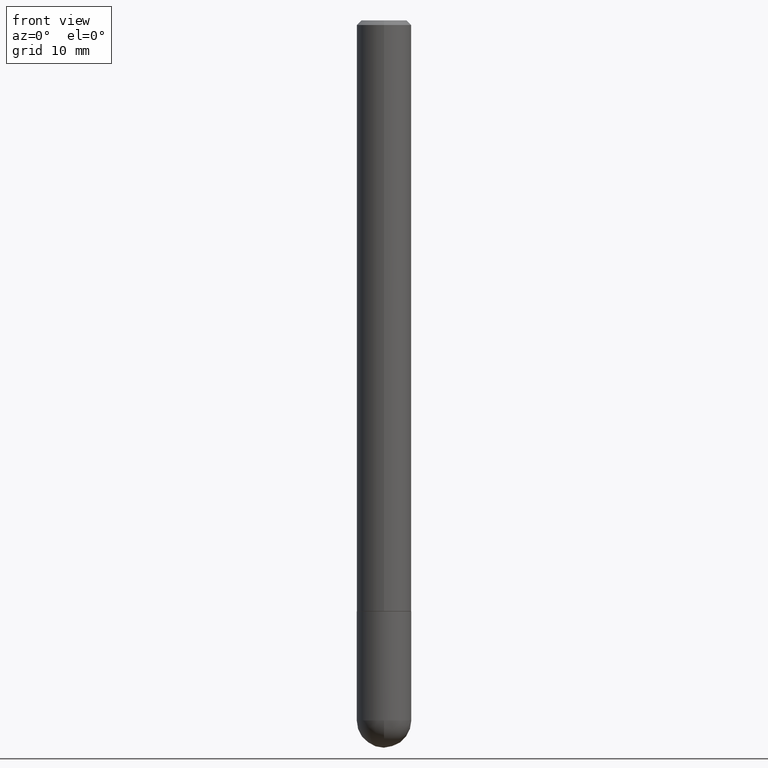
[diagram: clean part render]
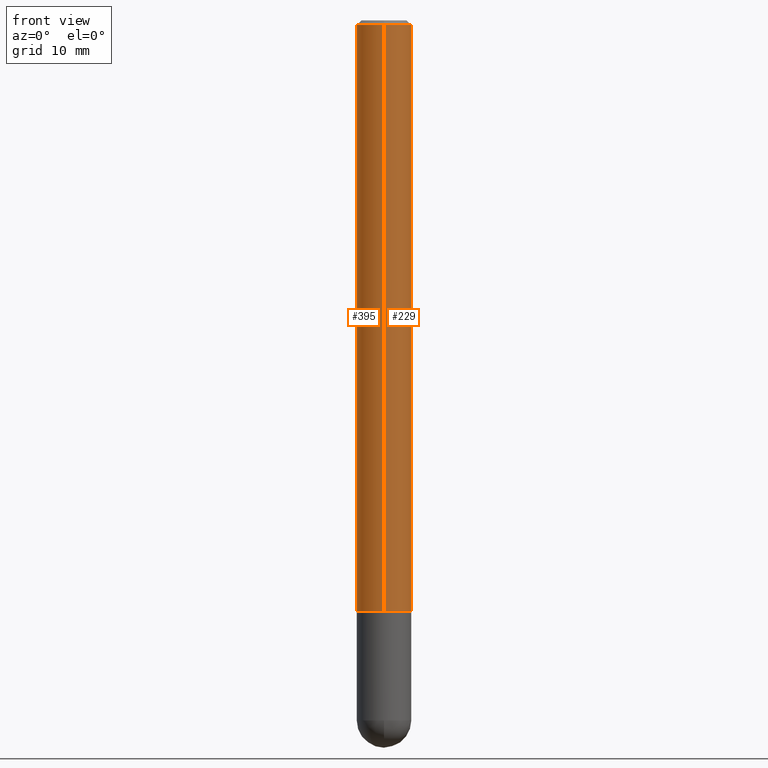
[diagram: same view with one multi-face feature highlighted, each face labeled with its STEP entity id]
A machine part, front view. The highlighted faces form ONE feature: a constant-radius fillet chain: 2 tangent blend faces with common blend radius 2.9997 mm. The faces share edges in the B-rep.
Their STEP definitions:
[1] entity #229 (Cylinder):
#6 = VECTOR ( 'NONE', #367, 39.37007874015748143 ) ;
#8 = VERTEX_POINT ( 'NONE', #249 ) ;
#16 = CIRCLE ( 'NONE', #323, 0.1181000000000002881 ) ;
#20 = CARTESIAN_POINT ( 'NONE',  ( 8.246878922347486570E-16, 0.1180999999999999689, -0.02000000000000048614 ) ) ;
#25 = DIRECTION ( 'NONE',  ( -6.982962677686265922E-15, -1.000000000000000000, 3.469747663417776213E-15 ) ) ;
#35 = ORIENTED_EDGE ( 'NONE', *, *, #37, .F. ) ;
#37 = EDGE_CURVE ( 'NONE', #8, #125, #256, .T. ) ;
#44 = EDGE_LOOP ( 'NONE', ( #74, #69, #104, #35 ) ) ;
#48 = AXIS2_PLACEMENT_3D ( 'NONE', #174, #179, #25 ) ;
#53 = CARTESIAN_POINT ( 'NONE',  ( -8.246878922347491501E-16, -0.1181000000000001632, 4.114153699294472715E-16 ) ) ;
#60 = EDGE_CURVE ( 'NONE', #8, #65, #16, .T. ) ;
#65 = VERTEX_POINT ( 'NONE', #209 ) ;
#69 = ORIENTED_EDGE ( 'NONE', *, *, #157, .T. ) ;
#74 = ORIENTED_EDGE ( 'NONE', *, *, #60, .T. ) ;
#88 = CARTESIAN_POINT ( 'NONE',  ( -8.102248135368175393E-16, -0.1181000000000001077, -0.01999999999999966735 ) ) ;
#104 = ORIENTED_EDGE ( 'NONE', *, *, #145, .F. ) ;
#109 = LINE ( 'NONE', #112, #6 ) ;
#112 = CARTESIAN_POINT ( 'NONE',  ( 8.391509709326793804E-16, 0.1181000000000001632, -4.114153699294472715E-16 ) ) ;
#124 = DIRECTION ( 'NONE',  ( -2.450959248914768678E-29, 3.483618712357719301E-15, 1.000000000000000000 ) ) ;
#125 = VERTEX_POINT ( 'NONE', #88 ) ;
#145 = EDGE_CURVE ( 'NONE', #125, #384, #362, .T. ) ;
#156 = DIRECTION ( 'NONE',  ( -6.982962677686265922E-15, -1.000000000000000000, 3.483618712357719695E-15 ) ) ;
#157 = EDGE_CURVE ( 'NONE', #65, #384, #109, .T. ) ;
#174 = CARTESIAN_POINT ( 'NONE',  ( 4.901918497829555222E-31, -6.967237424715466014E-17, -0.02000000000000007674 ) ) ;
#179 = DIRECTION ( 'NONE',  ( -2.450959248914768678E-29, 3.483618712357719301E-15, 1.000000000000000000 ) ) ;
#209 = CARTESIAN_POINT ( 'NONE',  ( 8.391509709327114278E-16, 0.1180999999999913785, -2.558000000000001162 ) ) ;
#225 = CYLINDRICAL_SURFACE ( 'NONE', #389, 0.1181000000000001632 ) ;
#229 = ADVANCED_FACE ( 'NONE', ( #382 ), #225, .T. ) ;
#235 = VECTOR ( 'NONE', #363, 39.37007874015748143 ) ;
#249 = CARTESIAN_POINT ( 'NONE',  ( -8.246878922346873231E-16, -0.1181000000000091976, -2.557999999999999829 ) ) ;
#252 = DIRECTION ( 'NONE',  ( -6.982962677686265922E-15, -1.000000000000000000, 4.626330217890358292E-15 ) ) ;
#256 = LINE ( 'NONE', #53, #235 ) ;
#302 = DIRECTION ( 'NONE',  ( -2.450959248914768678E-29, 3.483618712357719301E-15, 1.000000000000000000 ) ) ;
#323 = AXIS2_PLACEMENT_3D ( 'NONE', #370, #302, #252 ) ;
#347 = CARTESIAN_POINT ( 'NONE',  ( 0.000000000000000000, 0.000000000000000000, 0.000000000000000000 ) ) ;
#362 = CIRCLE ( 'NONE', #48, 0.1181000000000000383 ) ;
#363 = DIRECTION ( 'NONE',  ( -2.450959248914768678E-29, 3.483618712357719301E-15, 1.000000000000000000 ) ) ;
#367 = DIRECTION ( 'NONE',  ( -2.450959248914768678E-29, 3.483618712357719301E-15, 1.000000000000000000 ) ) ;
#370 = CARTESIAN_POINT ( 'NONE',  ( 6.269553758723979197E-29, -8.911096666211047225E-15, -2.558000000000000274 ) ) ;
#382 = FACE_OUTER_BOUND ( 'NONE', #44, .T. ) ;
#384 = VERTEX_POINT ( 'NONE', #20 ) ;
#389 = AXIS2_PLACEMENT_3D ( 'NONE', #347, #124, #156 ) ;
[2] entity #395 (Cylinder):
#4 = EDGE_CURVE ( 'NONE', #65, #8, #407, .T. ) ;
#6 = VECTOR ( 'NONE', #367, 39.37007874015748143 ) ;
#8 = VERTEX_POINT ( 'NONE', #249 ) ;
#20 = CARTESIAN_POINT ( 'NONE',  ( 8.246878922347486570E-16, 0.1180999999999999689, -0.02000000000000048614 ) ) ;
#30 = AXIS2_PLACEMENT_3D ( 'NONE', #281, #403, #376 ) ;
#34 = AXIS2_PLACEMENT_3D ( 'NONE', #392, #240, #47 ) ;
#37 = EDGE_CURVE ( 'NONE', #8, #125, #256, .T. ) ;
#45 = CARTESIAN_POINT ( 'NONE',  ( 4.901918497829555222E-31, -6.967237424715466014E-17, -0.02000000000000007674 ) ) ;
#47 = DIRECTION ( 'NONE',  ( -6.982962677686265922E-15, -1.000000000000000000, 3.483618712357719695E-15 ) ) ;
#53 = CARTESIAN_POINT ( 'NONE',  ( -8.246878922347491501E-16, -0.1181000000000001632, 4.114153699294472715E-16 ) ) ;
#65 = VERTEX_POINT ( 'NONE', #209 ) ;
#88 = CARTESIAN_POINT ( 'NONE',  ( -8.102248135368175393E-16, -0.1181000000000001077, -0.01999999999999966735 ) ) ;
#101 = DIRECTION ( 'NONE',  ( -2.450959248914768678E-29, 3.483618712357719301E-15, 1.000000000000000000 ) ) ;
#107 = DIRECTION ( 'NONE',  ( -6.982962677686265922E-15, -1.000000000000000000, 3.469747663417776213E-15 ) ) ;
#109 = LINE ( 'NONE', #112, #6 ) ;
#112 = CARTESIAN_POINT ( 'NONE',  ( 8.391509709326793804E-16, 0.1181000000000001632, -4.114153699294472715E-16 ) ) ;
#125 = VERTEX_POINT ( 'NONE', #88 ) ;
#133 = CYLINDRICAL_SURFACE ( 'NONE', #34, 0.1181000000000001632 ) ;
#150 = CIRCLE ( 'NONE', #212, 0.1181000000000000383 ) ;
#157 = EDGE_CURVE ( 'NONE', #65, #384, #109, .T. ) ;
#159 = EDGE_LOOP ( 'NONE', ( #393, #299, #300, #350 ) ) ;
#209 = CARTESIAN_POINT ( 'NONE',  ( 8.391509709327114278E-16, 0.1180999999999913785, -2.558000000000001162 ) ) ;
#212 = AXIS2_PLACEMENT_3D ( 'NONE', #45, #101, #107 ) ;
#235 = VECTOR ( 'NONE', #363, 39.37007874015748143 ) ;
#240 = DIRECTION ( 'NONE',  ( -2.450959248914768678E-29, 3.483618712357719301E-15, 1.000000000000000000 ) ) ;
#249 = CARTESIAN_POINT ( 'NONE',  ( -8.246878922346873231E-16, -0.1181000000000091976, -2.557999999999999829 ) ) ;
#256 = LINE ( 'NONE', #53, #235 ) ;
#281 = CARTESIAN_POINT ( 'NONE',  ( 6.269553758723979197E-29, -8.911096666211047225E-15, -2.558000000000000274 ) ) ;
#299 = ORIENTED_EDGE ( 'NONE', *, *, #4, .T. ) ;
#300 = ORIENTED_EDGE ( 'NONE', *, *, #37, .T. ) ;
#336 = EDGE_CURVE ( 'NONE', #384, #125, #150, .T. ) ;
#350 = ORIENTED_EDGE ( 'NONE', *, *, #336, .F. ) ;
#361 = FACE_OUTER_BOUND ( 'NONE', #159, .T. ) ;
#363 = DIRECTION ( 'NONE',  ( -2.450959248914768678E-29, 3.483618712357719301E-15, 1.000000000000000000 ) ) ;
#367 = DIRECTION ( 'NONE',  ( -2.450959248914768678E-29, 3.483618712357719301E-15, 1.000000000000000000 ) ) ;
#376 = DIRECTION ( 'NONE',  ( -6.982962677686265922E-15, -1.000000000000000000, 4.626330217890358292E-15 ) ) ;
#384 = VERTEX_POINT ( 'NONE', #20 ) ;
#392 = CARTESIAN_POINT ( 'NONE',  ( 0.000000000000000000, 0.000000000000000000, 0.000000000000000000 ) ) ;
#393 = ORIENTED_EDGE ( 'NONE', *, *, #157, .F. ) ;
#395 = ADVANCED_FACE ( 'NONE', ( #361 ), #133, .T. ) ;
#403 = DIRECTION ( 'NONE',  ( -2.450959248914768678E-29, 3.483618712357719301E-15, 1.000000000000000000 ) ) ;
#407 = CIRCLE ( 'NONE', #30, 0.1181000000000002881 ) ;